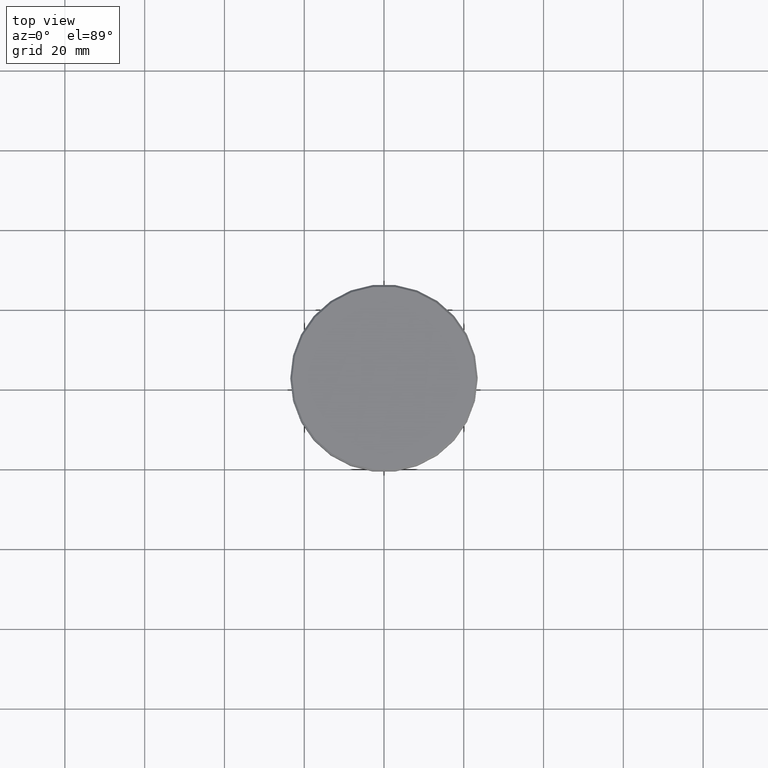
[diagram: clean part render]
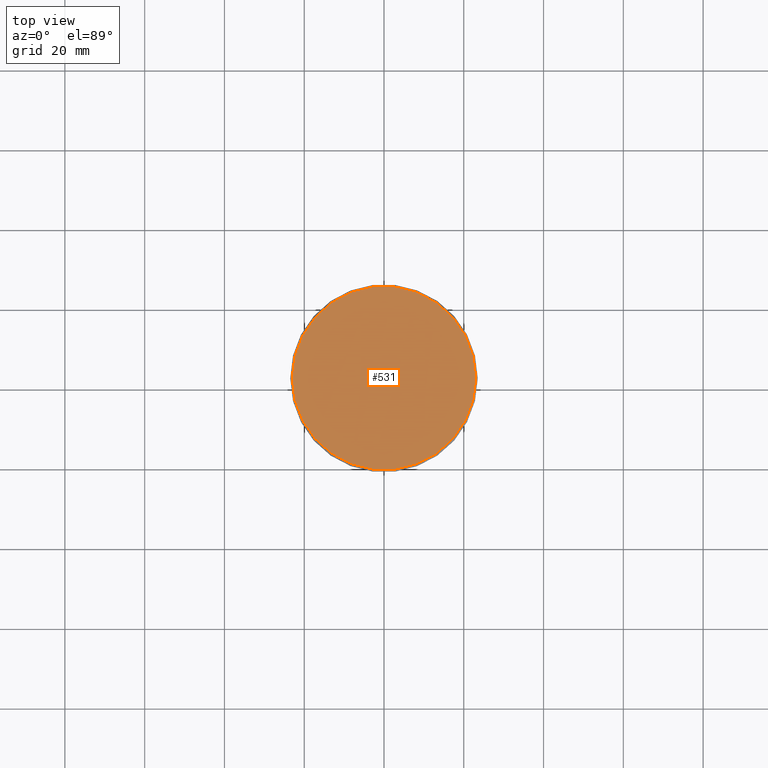
[diagram: same view with one face highlighted and labeled with its STEP entity id]
A machine part, top view. The second image highlights one B-rep face of the part: STEP entity #531.
In plain terms, the highlighted planar face has unit normal (0, -0, 1).
Its self-contained STEP definition (entity closure, byte-faithful):
#43 = CARTESIAN_POINT ( 'NONE',  ( 22.99999999999999645, 2.847303808017596139E-15, 0.000000000000000000 ) ) ;
#72 = EDGE_CURVE ( 'NONE', #977, #307, #811, .T. ) ;
#79 = EDGE_LOOP ( 'NONE', ( #82, #606 ) ) ;
#82 = ORIENTED_EDGE ( 'NONE', *, *, #1023, .T. ) ;
#99 = PLANE ( 'NONE',  #636 ) ;
#170 = DIRECTION ( 'NONE',  ( -0.000000000000000000, -0.000000000000000000, 1.000000000000000000 ) ) ;
#224 = DIRECTION ( 'NONE',  ( 1.000000000000000000, 0.000000000000000000, 0.000000000000000000 ) ) ;
#232 = CARTESIAN_POINT ( 'NONE',  ( -22.99999999999999645, 0.000000000000000000, 0.000000000000000000 ) ) ;
#243 = CIRCLE ( 'NONE', #915, 22.99999999999999645 ) ;
#307 = VERTEX_POINT ( 'NONE', #232 ) ;
#331 = DIRECTION ( 'NONE',  ( 1.000000000000000000, 0.000000000000000000, 0.000000000000000000 ) ) ;
#531 = ADVANCED_FACE ( 'NONE', ( #943 ), #99, .T. ) ;
#595 = AXIS2_PLACEMENT_3D ( 'NONE', #990, #170, #901 ) ;
#606 = ORIENTED_EDGE ( 'NONE', *, *, #72, .T. ) ;
#636 = AXIS2_PLACEMENT_3D ( 'NONE', #947, #748, #224 ) ;
#699 = CARTESIAN_POINT ( 'NONE',  ( 0.000000000000000000, 0.000000000000000000, 0.000000000000000000 ) ) ;
#748 = DIRECTION ( 'NONE',  ( 0.000000000000000000, -0.000000000000000000, 1.000000000000000000 ) ) ;
#785 = DIRECTION ( 'NONE',  ( -0.000000000000000000, -0.000000000000000000, 1.000000000000000000 ) ) ;
#811 = CIRCLE ( 'NONE', #595, 22.99999999999999645 ) ;
#901 = DIRECTION ( 'NONE',  ( 1.000000000000000000, 0.000000000000000000, 0.000000000000000000 ) ) ;
#915 = AXIS2_PLACEMENT_3D ( 'NONE', #699, #785, #331 ) ;
#943 = FACE_OUTER_BOUND ( 'NONE', #79, .T. ) ;
#947 = CARTESIAN_POINT ( 'NONE',  ( 0.000000000000000000, 0.000000000000000000, 0.000000000000000000 ) ) ;
#977 = VERTEX_POINT ( 'NONE', #43 ) ;
#990 = CARTESIAN_POINT ( 'NONE',  ( 0.000000000000000000, 0.000000000000000000, 0.000000000000000000 ) ) ;
#1023 = EDGE_CURVE ( 'NONE', #307, #977, #243, .T. ) ;